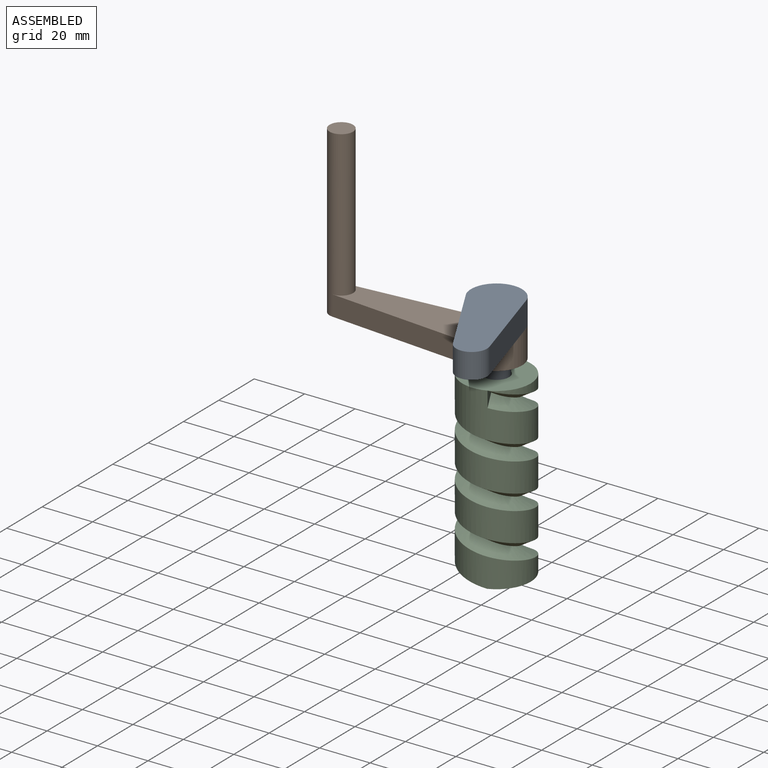
[diagram: assembled view]
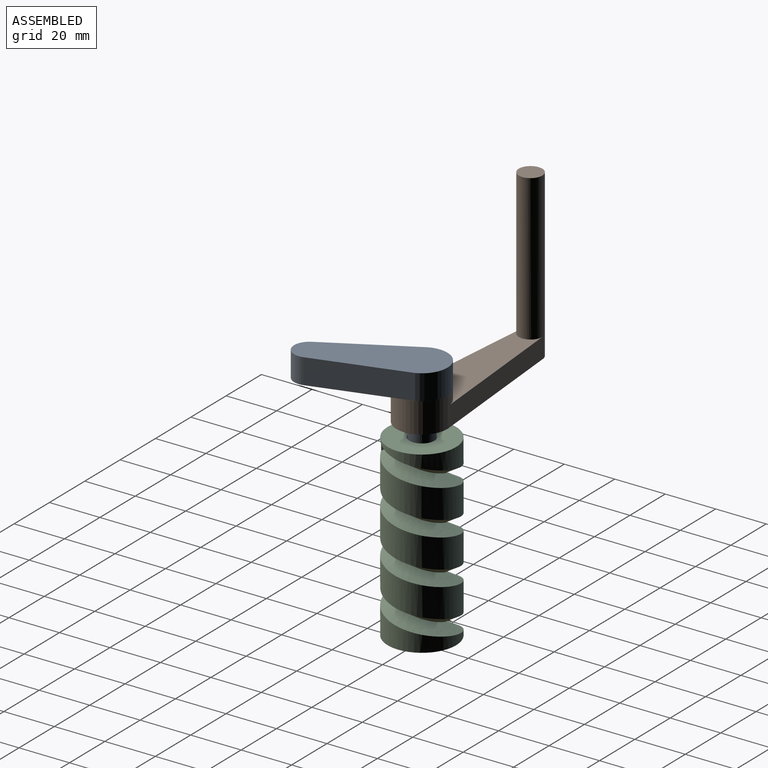
[diagram: assembled view, second angle]
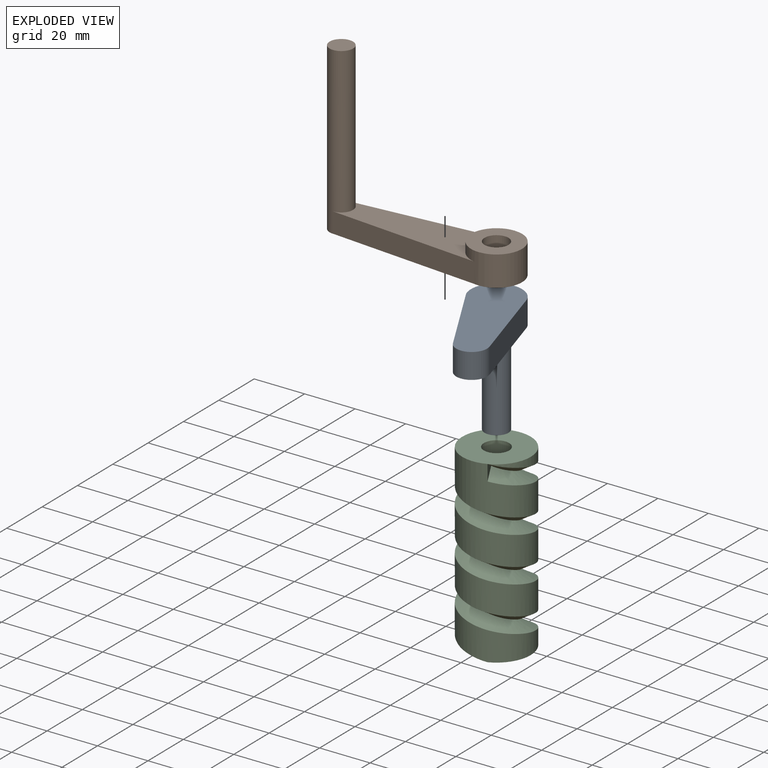
[diagram: exploded view]
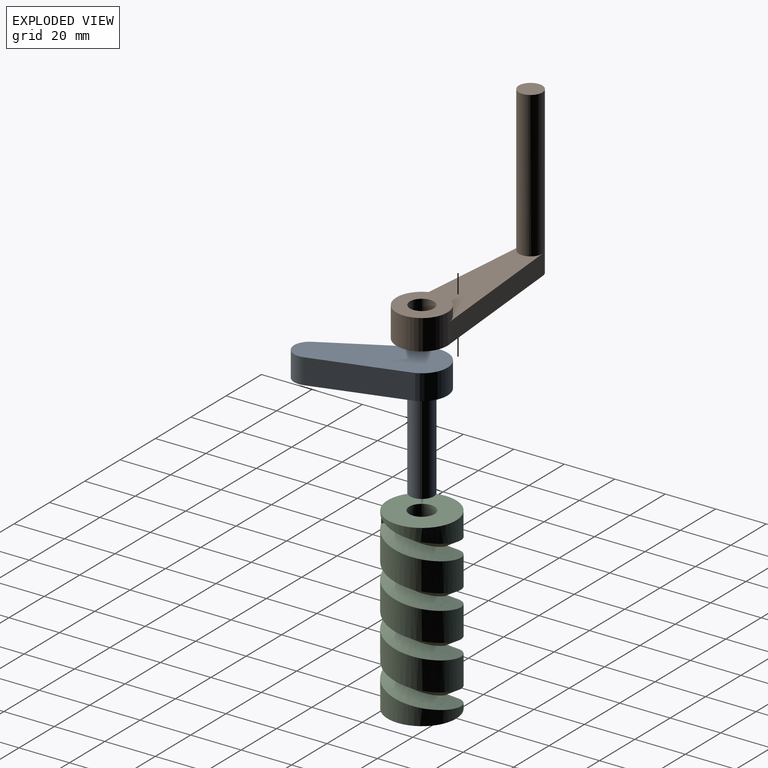
[diagram: exploded view, second angle]
ASSEMBLY  parts=3 mates=2
PART A: 8 faces, bbox 53.6x20.2x47.5 mm
  f0: plane 53.57x20.23mm, normal (0,0,1), area 827.2mm2, adj f1,f2,f3,f4
  f1: plane 37.97x10mm, normal (0.11,0.99,0), area 381.9mm2, adj f0,f2,f4,f5
  f2: cylinder r=10.11mm len=20.23mm, axis (0,0,-1), area 317.8mm2, adj f0,f1,f3,f5
  f3: plane 37.97x10mm, normal (0.11,-0.99,0), area 381.9mm2, adj f0,f2,f4,f5
  f4: cylinder r=6.13mm len=12.19mm, axis (0,0,-1), area 179.6mm2, adj f0,f1,f3,f5
  f5: plane 53.57x20.23mm, normal (0,0,-1), area 756.3mm2, adj f1,f2,f3,f4,f6
  f6: cylinder r=4.75mm len=37.5mm, axis (0,0,1), area 1119.2mm2, adj f5,f7
  f7: plane 9.5x9.5mm, normal (0,0,-1), area 70.9mm2, adj f6
PART B: 12 faces, bbox 76.3x20.2x65.8 mm
  f0: plane 11.94x2.12mm, normal (0.11,0.99,0), area 25.4mm2, adj f1,f3,f5,f6
  f1: cylinder r=10.11mm len=20.23mm, axis (0,0,1), area 153.7mm2, adj f0,f2,f5,f6,f7,f8,f9
  f2: plane 11.94x2.12mm, normal (0.11,-0.99,0), area 25.4mm2, adj f1,f3,f5,f6
  f3: cylinder r=10.11mm len=19.78mm, axis (0,0,1), area 328.4mm2, adj f0,f2,f5,f6
  f4: cylinder r=4.75mm len=11.94mm, axis (0,0,1), area 356.3mm2, adj f5,f6
  f5: plane 76.27x20.23mm, normal (0,0,-1), area 1033.6mm2, adj f0,f1,f2,f3,f4,f7,f8,f10
  f6: plane 20.23x20.23mm, normal (0,0,1), area 250.4mm2, adj f0,f1,f2,f3,f4
  f7: plane 60.14x8mm, normal (-0.09,-1,0), area 483mm2, adj f1,f5,f9,f10
  f8: plane 60.14x8mm, normal (-0.09,1,0), area 483mm2, adj f1,f5,f9,f10
  f9: plane 60.14x19.92mm, normal (0,0,1), area 715mm2, adj f1,f7,f8,f10
  f10: cylinder r=4.66mm len=65.8mm, axis (0,0,-1), area 1803mm2, adj f5,f7,f8,f9,f11
  f11: plane 9.32x9.32mm, normal (0,0,1), area 68.2mm2, adj f10
PART C: 8 faces, bbox 27.1x28.5x75.5 mm
  f0: cylinder r=13.55mm len=71mm, axis (0,0,-1), area 3822.8mm2, adj f2,f4,f5,f6,f7
  f1: cylinder r=5mm len=20mm, axis (0,0,-1), area 628.3mm2, adj f2,f3
  f2: plane 27.1x27.1mm, normal (0,0,1), area 498.2mm2, adj f0,f1
  f3: plane 10x10mm, normal (0,0,1), area 78.5mm2, adj f1
  f4: plane 27.1x24.92mm, normal (0,0,-1), area 505.7mm2, adj f0,f5,f6
  f5: bspline ~72.35x28.49mm, area 1638.7mm2, adj f0,f4,f6,f7
  f6: bspline ~74.13x28.49mm, area 1720.4mm2, adj f0,f4,f5,f7
  f7: plane 6.26x5.47mm, normal (0,1,0), area 17.1mm2, adj f0,f5,f6
PLACE A rot(axis=(0,0,-1),67.5deg) t=(44.93,-6.91,11.86)mm
PLACE B t=(44.93,-6.91,11.86)mm fixed
PLACE C rot(axis=(0,0,-1),67.5deg) t=(44.93,-6.91,-25.64)mm
MATE fastened A.f6 <-> C.f1  axis (0,0,-1) through (44.93,-6.91,-25.64)mm
MATE revolute A.f2 <-> B.f4  axis (0,0,-1) through (44.93,-6.91,11.86)mm
